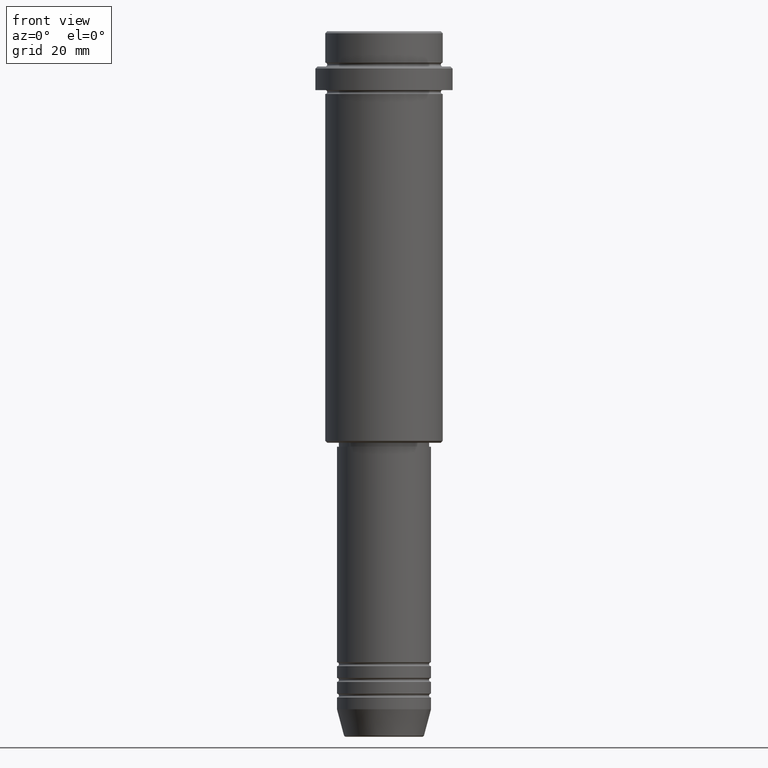
[diagram: clean part render]
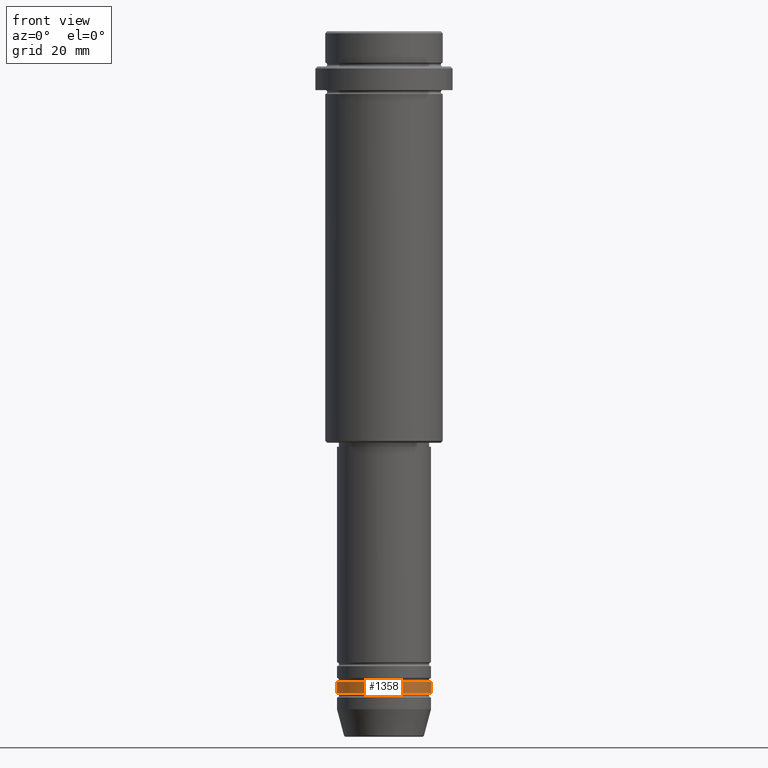
[diagram: same view with one face highlighted and labeled with its STEP entity id]
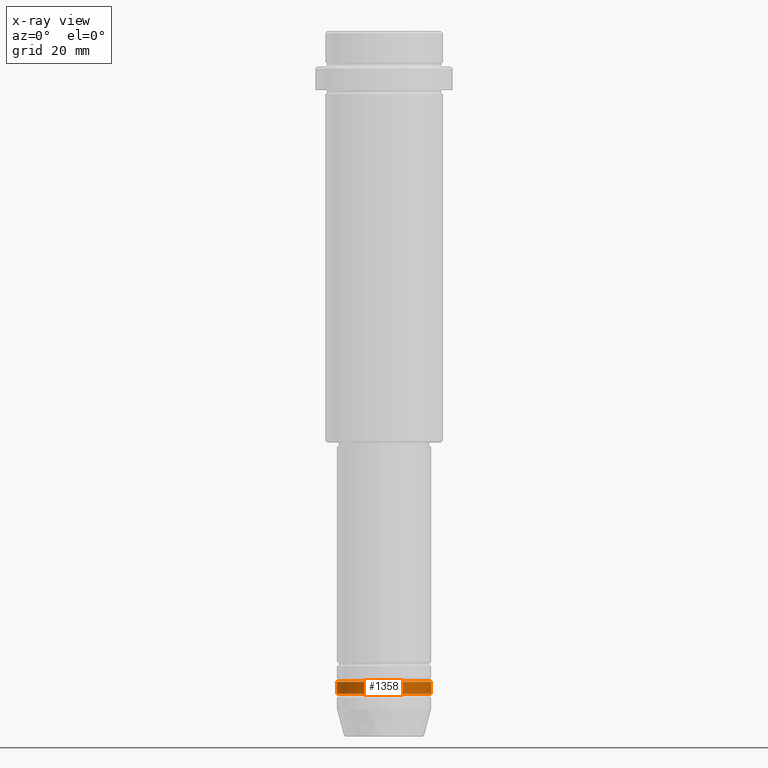
[diagram: x-ray of the same camera — body ghosted, the highlighted face saturated]
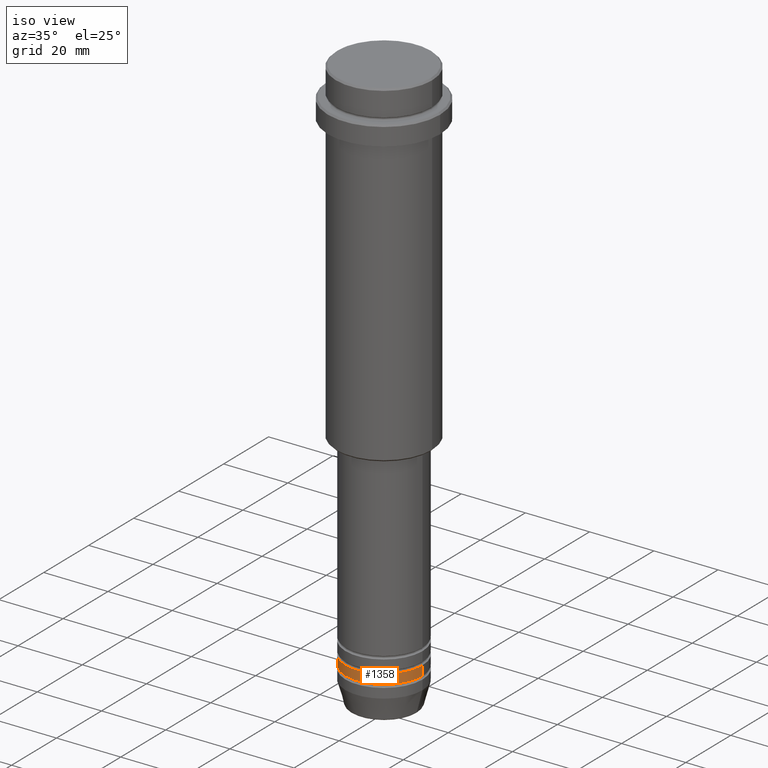
[diagram: same view with one face highlighted and labeled with its STEP entity id]
A machine part, front view. The second image highlights one B-rep face of the part: STEP entity #1358.
The next image is the same camera in x-ray: the body ghosted, the highlighted face saturated — about 0% of this face is hidden behind the body in this view.
A second angle (iso view) of the same face is appended — the face is thin or edge-on in the first view.
In plain terms, the highlighted cylindrical surface (partial cylindrical patch) has radius 12 mm, axis along (-0, -0, 1).
Its self-contained STEP definition (entity closure, byte-faithful):
#42 = CARTESIAN_POINT ( 'NONE',  ( 12.00000000000000000, 0.000000000000000000, -165.9999999999999147 ) ) ;
#59 = CARTESIAN_POINT ( 'NONE',  ( 12.00000000000000000, 0.000000000000000000, -168.9999999999999147 ) ) ;
#97 = DIRECTION ( 'NONE',  ( -0.000000000000000000, -0.000000000000000000, 1.000000000000000000 ) ) ;
#157 = DIRECTION ( 'NONE',  ( -0.000000000000000000, -0.000000000000000000, 1.000000000000000000 ) ) ;
#184 = AXIS2_PLACEMENT_3D ( 'NONE', #356, #157, #571 ) ;
#252 = VERTEX_POINT ( 'NONE', #42 ) ;
#256 = DIRECTION ( 'NONE',  ( 1.000000000000000000, 0.000000000000000000, 0.000000000000000000 ) ) ;
#295 = FACE_OUTER_BOUND ( 'NONE', #365, .T. ) ;
#317 = CARTESIAN_POINT ( 'NONE',  ( 0.000000000000000000, 0.000000000000000000, -168.9999999999999147 ) ) ;
#356 = CARTESIAN_POINT ( 'NONE',  ( 0.000000000000000000, 0.000000000000000000, -165.9999999999999147 ) ) ;
#365 = EDGE_LOOP ( 'NONE', ( #1313, #1056, #432, #405 ) ) ;
#368 = EDGE_CURVE ( 'NONE', #1347, #252, #709, .T. ) ;
#405 = ORIENTED_EDGE ( 'NONE', *, *, #1308, .F. ) ;
#411 = LINE ( 'NONE', #854, #1233 ) ;
#432 = ORIENTED_EDGE ( 'NONE', *, *, #368, .T. ) ;
#486 = DIRECTION ( 'NONE',  ( -0.000000000000000000, -0.000000000000000000, 1.000000000000000000 ) ) ;
#503 = DIRECTION ( 'NONE',  ( 1.000000000000000000, 0.000000000000000000, 0.000000000000000000 ) ) ;
#517 = VECTOR ( 'NONE', #486, 1000.000000000000000 ) ;
#571 = DIRECTION ( 'NONE',  ( 1.000000000000000000, 0.000000000000000000, 0.000000000000000000 ) ) ;
#618 = AXIS2_PLACEMENT_3D ( 'NONE', #317, #1229, #256 ) ;
#620 = CIRCLE ( 'NONE', #184, 12.00000000000000000 ) ;
#709 = LINE ( 'NONE', #1158, #517 ) ;
#713 = CIRCLE ( 'NONE', #618, 12.00000000000000000 ) ;
#724 = DIRECTION ( 'NONE',  ( -0.000000000000000000, -0.000000000000000000, 1.000000000000000000 ) ) ;
#793 = CARTESIAN_POINT ( 'NONE',  ( -12.00000000000000000, 1.469576158976823947E-15, -168.9999999999999147 ) ) ;
#854 = CARTESIAN_POINT ( 'NONE',  ( -12.00000000000000000, 1.469576158976823947E-15, 0.000000000000000000 ) ) ;
#859 = CYLINDRICAL_SURFACE ( 'NONE', #1372, 12.00000000000000000 ) ;
#965 = CARTESIAN_POINT ( 'NONE',  ( -12.00000000000000000, 1.469576158976823947E-15, -165.9999999999999147 ) ) ;
#1053 = EDGE_CURVE ( 'NONE', #1221, #1347, #713, .T. ) ;
#1056 = ORIENTED_EDGE ( 'NONE', *, *, #1053, .T. ) ;
#1107 = EDGE_CURVE ( 'NONE', #1221, #1386, #411, .T. ) ;
#1158 = CARTESIAN_POINT ( 'NONE',  ( 12.00000000000000000, 0.000000000000000000, 0.000000000000000000 ) ) ;
#1173 = CARTESIAN_POINT ( 'NONE',  ( 0.000000000000000000, 0.000000000000000000, 0.000000000000000000 ) ) ;
#1221 = VERTEX_POINT ( 'NONE', #793 ) ;
#1229 = DIRECTION ( 'NONE',  ( -0.000000000000000000, -0.000000000000000000, 1.000000000000000000 ) ) ;
#1233 = VECTOR ( 'NONE', #97, 1000.000000000000000 ) ;
#1308 = EDGE_CURVE ( 'NONE', #1386, #252, #620, .T. ) ;
#1313 = ORIENTED_EDGE ( 'NONE', *, *, #1107, .F. ) ;
#1347 = VERTEX_POINT ( 'NONE', #59 ) ;
#1358 = ADVANCED_FACE ( 'NONE', ( #295 ), #859, .T. ) ;
#1372 = AXIS2_PLACEMENT_3D ( 'NONE', #1173, #724, #503 ) ;
#1386 = VERTEX_POINT ( 'NONE', #965 ) ;